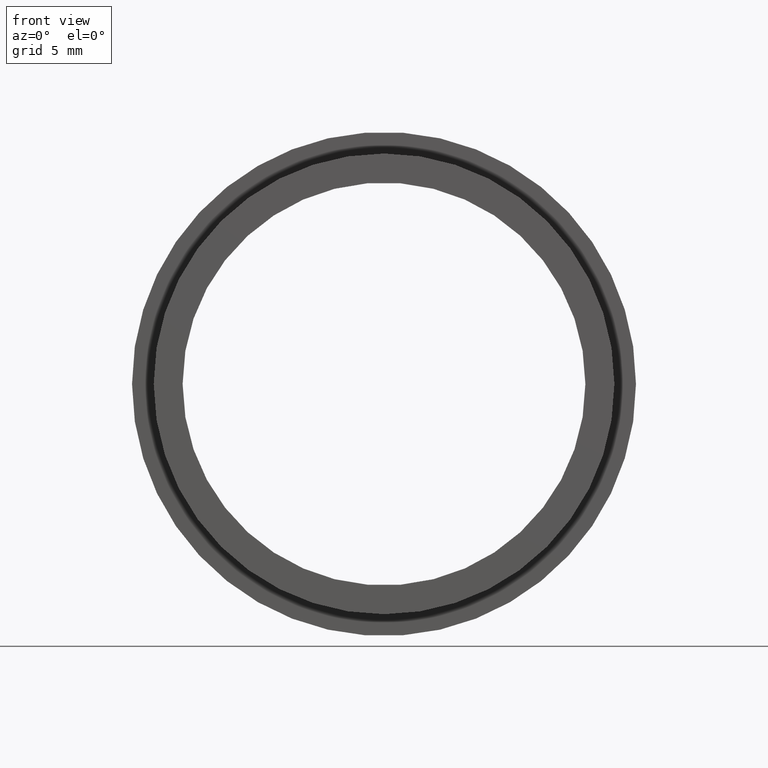
[diagram: clean part render]
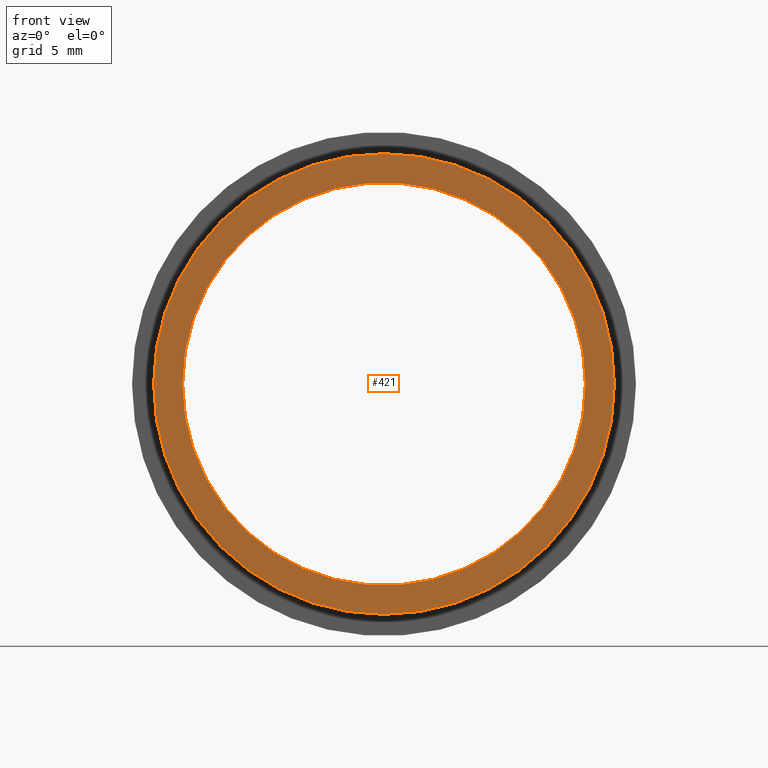
[diagram: same view with one face highlighted and labeled with its STEP entity id]
A machine part, front view. The second image highlights one B-rep face of the part: STEP entity #421.
In plain terms, the highlighted planar face has unit normal (-0, 1, 0).
Its self-contained STEP definition (entity closure, byte-faithful):
#22 = DIRECTION ( 'NONE',  ( -1.000000000000000000, -1.214007600543631100E-016, 0.0000000000000000000 ) ) ;
#25 = CIRCLE ( 'NONE', #26, 11.60999999999999900 ) ;
#26 = AXIS2_PLACEMENT_3D ( 'NONE', #212, #430, #22 ) ;
#44 = CARTESIAN_POINT ( 'NONE',  ( 2.134740942951285100E-015, -0.5454644111196650400, 0.0000000000000000000 ) ) ;
#56 = CARTESIAN_POINT ( 'NONE',  ( 10.15000000000000400, -0.5454644111196651500, 0.0000000000000000000 ) ) ;
#58 = ORIENTED_EDGE ( 'NONE', *, *, #233, .T. ) ;
#78 = DIRECTION ( 'NONE',  ( -1.000000000000000000, -1.174997428309413300E-016, 0.0000000000000000000 ) ) ;
#98 = CARTESIAN_POINT ( 'NONE',  ( 11.61000000000000100, -0.5454644111196637100, 1.421814933810076900E-015 ) ) ;
#103 = CARTESIAN_POINT ( 'NONE',  ( -10.15000000000000000, -0.5454644111196662600, 0.0000000000000000000 ) ) ;
#110 = EDGE_LOOP ( 'NONE', ( #112, #58 ) ) ;
#112 = ORIENTED_EDGE ( 'NONE', *, *, #327, .T. ) ;
#136 = ORIENTED_EDGE ( 'NONE', *, *, #270, .F. ) ;
#138 = AXIS2_PLACEMENT_3D ( 'NONE', #387, #288, #224 ) ;
#147 = FACE_OUTER_BOUND ( 'NONE', #176, .T. ) ;
#153 = DIRECTION ( 'NONE',  ( -1.000000000000000000, -1.224646799147351000E-016, 0.0000000000000000000 ) ) ;
#173 = CARTESIAN_POINT ( 'NONE',  ( 2.134740942951285100E-015, -0.5454644111196650400, 0.0000000000000000000 ) ) ;
#176 = EDGE_LOOP ( 'NONE', ( #246, #136 ) ) ;
#183 = PLANE ( 'NONE',  #412 ) ;
#212 = CARTESIAN_POINT ( 'NONE',  ( 2.134740942951285100E-015, -0.5454644111196650400, 0.0000000000000000000 ) ) ;
#214 = AXIS2_PLACEMENT_3D ( 'NONE', #44, #388, #78 ) ;
#219 = CIRCLE ( 'NONE', #214, 10.15000000000000200 ) ;
#224 = DIRECTION ( 'NONE',  ( -1.000000000000000000, -1.214007600543631100E-016, 0.0000000000000000000 ) ) ;
#228 = AXIS2_PLACEMENT_3D ( 'NONE', #173, #409, #305 ) ;
#232 = VERTEX_POINT ( 'NONE', #336 ) ;
#233 = EDGE_CURVE ( 'NONE', #304, #308, #403, .T. ) ;
#246 = ORIENTED_EDGE ( 'NONE', *, *, #423, .F. ) ;
#258 = VERTEX_POINT ( 'NONE', #98 ) ;
#270 = EDGE_CURVE ( 'NONE', #258, #232, #303, .T. ) ;
#288 = DIRECTION ( 'NONE',  ( -1.224646799147351000E-016, 1.000000000000000000, -0.0000000000000000000 ) ) ;
#303 = CIRCLE ( 'NONE', #138, 11.60999999999999900 ) ;
#304 = VERTEX_POINT ( 'NONE', #411 ) ;
#305 = DIRECTION ( 'NONE',  ( -1.000000000000000000, -1.174997428309413300E-016, 0.0000000000000000000 ) ) ;
#308 = VERTEX_POINT ( 'NONE', #103 ) ;
#316 = DIRECTION ( 'NONE',  ( -1.224646799147351000E-016, 1.000000000000000000, 0.0000000000000000000 ) ) ;
#327 = EDGE_CURVE ( 'NONE', #308, #304, #219, .T. ) ;
#336 = CARTESIAN_POINT ( 'NONE',  ( -11.60999999999999800, -0.5454644111196664800, 0.0000000000000000000 ) ) ;
#342 = FACE_BOUND ( 'NONE', #110, .T. ) ;
#387 = CARTESIAN_POINT ( 'NONE',  ( 2.134740942951285100E-015, -0.5454644111196650400, 0.0000000000000000000 ) ) ;
#388 = DIRECTION ( 'NONE',  ( -1.224646799147351000E-016, 1.000000000000000000, -0.0000000000000000000 ) ) ;
#403 = CIRCLE ( 'NONE', #228, 10.15000000000000200 ) ;
#409 = DIRECTION ( 'NONE',  ( -1.224646799147351000E-016, 1.000000000000000000, -0.0000000000000000000 ) ) ;
#411 = CARTESIAN_POINT ( 'NONE',  ( 10.15000000000000400, -0.5454644111196639300, 1.243016501134563900E-015 ) ) ;
#412 = AXIS2_PLACEMENT_3D ( 'NONE', #56, #316, #153 ) ;
#421 = ADVANCED_FACE ( 'NONE', ( #147, #342 ), #183, .F. ) ;
#423 = EDGE_CURVE ( 'NONE', #232, #258, #25, .T. ) ;
#430 = DIRECTION ( 'NONE',  ( -1.224646799147351000E-016, 1.000000000000000000, -0.0000000000000000000 ) ) ;